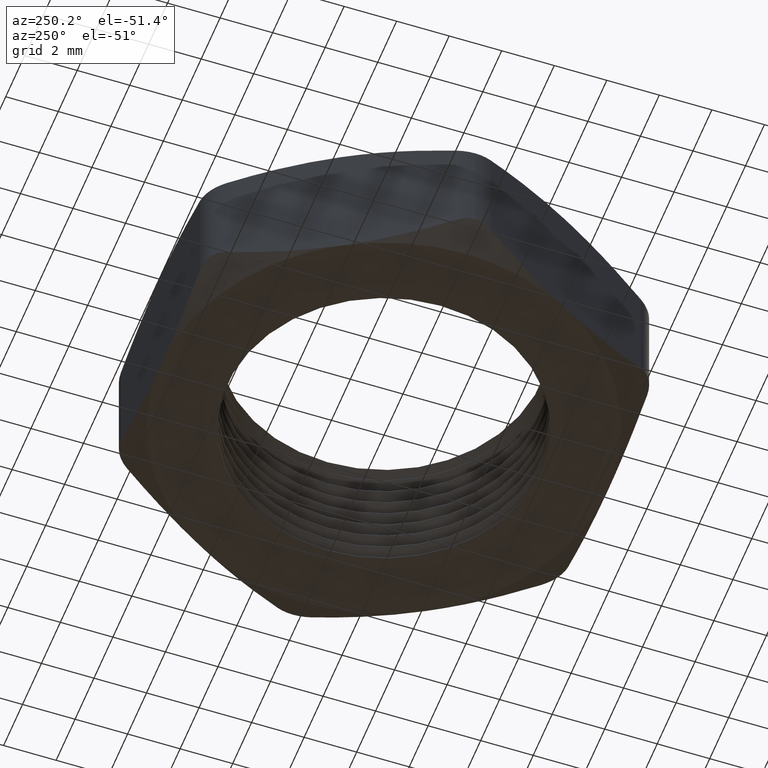
[diagram: clean part render]
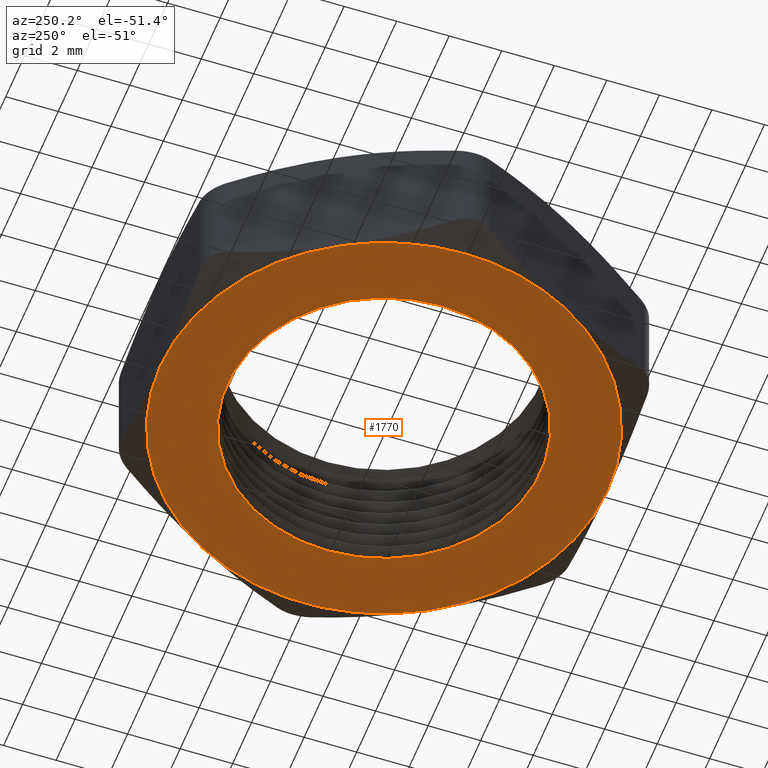
[diagram: same view with one face highlighted and labeled with its STEP entity id]
A machine part, auxiliary view. The second image highlights one B-rep face of the part: STEP entity #1770.
In plain terms, the highlighted planar face has unit normal (0, 0, 1).
Its self-contained STEP definition (entity closure, byte-faithful):
#123 = CARTESIAN_POINT ( 'NONE',  ( 0.2349999999999999900, 2.877919977996279800E-017, 0.0000000000000000000 ) ) ;
#171 = CARTESIAN_POINT ( 'NONE',  ( -0.2901185102677870700, -0.1674999999999999300, 0.0000000000000000000 ) ) ;
#203 = CARTESIAN_POINT ( 'NONE',  ( -0.2349999999999999900, 0.0000000000000000000, 0.0000000000000000000 ) ) ;
#204 = DIRECTION ( 'NONE',  ( 1.000000000000000000, 0.0000000000000000000, 0.0000000000000000000 ) ) ;
#205 = DIRECTION ( 'NONE',  ( 0.0000000000000000000, 0.0000000000000000000, 1.000000000000000000 ) ) ;
#206 = CARTESIAN_POINT ( 'NONE',  ( 0.0000000000000000000, 0.0000000000000000000, 0.0000000000000000000 ) ) ;
#207 = AXIS2_PLACEMENT_3D ( 'NONE', #206, #205, #204 ) ;
#208 = CIRCLE ( 'NONE', #207, 0.2349999999999999900 ) ;
#604 = CARTESIAN_POINT ( 'NONE',  ( 0.0000000000000000000, 0.0000000000000000000, 0.0000000000000000000 ) ) ;
#712 = CARTESIAN_POINT ( 'NONE',  ( -0.3350000000000000200, 0.0000000000000000000, 0.0000000000000000000 ) ) ;
#713 = CARTESIAN_POINT ( 'NONE',  ( -0.2901185102677870700, 0.1675000000000000900, 0.0000000000000000000 ) ) ;
#714 = DIRECTION ( 'NONE',  ( 1.000000000000000000, 0.0000000000000000000, 0.0000000000000000000 ) ) ;
#715 = DIRECTION ( 'NONE',  ( 0.0000000000000000000, 0.0000000000000000000, 1.000000000000000000 ) ) ;
#716 = AXIS2_PLACEMENT_3D ( 'NONE', #604, #715, #714 ) ;
#717 = CIRCLE ( 'NONE', #716, 0.3350000000000000200 ) ;
#740 = DIRECTION ( 'NONE',  ( 1.000000000000000000, 0.0000000000000000000, 0.0000000000000000000 ) ) ;
#741 = DIRECTION ( 'NONE',  ( 0.0000000000000000000, 0.0000000000000000000, 1.000000000000000000 ) ) ;
#773 = CIRCLE ( 'NONE', #793, 0.3350000000000000200 ) ;
#792 = CARTESIAN_POINT ( 'NONE',  ( 0.0000000000000000000, 0.0000000000000000000, 0.0000000000000000000 ) ) ;
#793 = AXIS2_PLACEMENT_3D ( 'NONE', #792, #741, #740 ) ;
#857 = CARTESIAN_POINT ( 'NONE',  ( 0.0000000000000000000, 0.0000000000000000000, 0.0000000000000000000 ) ) ;
#890 = DIRECTION ( 'NONE',  ( 1.000000000000000000, 0.0000000000000000000, 0.0000000000000000000 ) ) ;
#891 = DIRECTION ( 'NONE',  ( 0.0000000000000000000, 0.0000000000000000000, 1.000000000000000000 ) ) ;
#892 = AXIS2_PLACEMENT_3D ( 'NONE', #909, #891, #890 ) ;
#893 = CIRCLE ( 'NONE', #892, 0.3350000000000000200 ) ;
#894 = DIRECTION ( 'NONE',  ( 1.000000000000000000, 0.0000000000000000000, 0.0000000000000000000 ) ) ;
#895 = DIRECTION ( 'NONE',  ( 0.0000000000000000000, 0.0000000000000000000, 1.000000000000000000 ) ) ;
#896 = CARTESIAN_POINT ( 'NONE',  ( 0.0000000000000000000, 0.0000000000000000000, 0.0000000000000000000 ) ) ;
#907 = AXIS2_PLACEMENT_3D ( 'NONE', #896, #895, #894 ) ;
#908 = CIRCLE ( 'NONE', #907, 0.3350000000000000200 ) ;
#909 = CARTESIAN_POINT ( 'NONE',  ( 0.0000000000000000000, 0.0000000000000000000, 0.0000000000000000000 ) ) ;
#954 = DIRECTION ( 'NONE',  ( 1.000000000000000000, 0.0000000000000000000, 0.0000000000000000000 ) ) ;
#955 = DIRECTION ( 'NONE',  ( 0.0000000000000000000, 0.0000000000000000000, 1.000000000000000000 ) ) ;
#956 = CARTESIAN_POINT ( 'NONE',  ( -0.5802370205355739100, -0.3349999999999999600, 0.0000000000000000000 ) ) ;
#957 = AXIS2_PLACEMENT_3D ( 'NONE', #956, #955, #954 ) ;
#958 = PLANE ( 'NONE',  #957 ) ;
#959 = FACE_OUTER_BOUND ( 'NONE', #1809, .T. ) ;
#960 = DIRECTION ( 'NONE',  ( 1.000000000000000000, 0.0000000000000000000, 0.0000000000000000000 ) ) ;
#961 = DIRECTION ( 'NONE',  ( 0.0000000000000000000, 0.0000000000000000000, 1.000000000000000000 ) ) ;
#972 = AXIS2_PLACEMENT_3D ( 'NONE', #857, #961, #960 ) ;
#973 = CIRCLE ( 'NONE', #972, 0.3350000000000000200 ) ;
#974 = FACE_BOUND ( 'NONE', #1769, .T. ) ;
#989 = DIRECTION ( 'NONE',  ( -1.000000000000000000, 0.0000000000000000000, 0.0000000000000000000 ) ) ;
#990 = DIRECTION ( 'NONE',  ( 0.0000000000000000000, 0.0000000000000000000, -1.000000000000000000 ) ) ;
#991 = CARTESIAN_POINT ( 'NONE',  ( 0.0000000000000000000, 0.0000000000000000000, 0.0000000000000000000 ) ) ;
#992 = AXIS2_PLACEMENT_3D ( 'NONE', #991, #990, #989 ) ;
#993 = CIRCLE ( 'NONE', #992, 0.3350000000000001300 ) ;
#994 = DIRECTION ( 'NONE',  ( 1.000000000000000000, 0.0000000000000000000, 0.0000000000000000000 ) ) ;
#995 = DIRECTION ( 'NONE',  ( 0.0000000000000000000, 0.0000000000000000000, 1.000000000000000000 ) ) ;
#996 = CARTESIAN_POINT ( 'NONE',  ( 0.0000000000000000000, 0.0000000000000000000, 0.0000000000000000000 ) ) ;
#997 = AXIS2_PLACEMENT_3D ( 'NONE', #996, #995, #994 ) ;
#1000 = CIRCLE ( 'NONE', #997, 0.3350000000000000200 ) ;
#1110 = CARTESIAN_POINT ( 'NONE',  ( 0.2901185102677870700, 0.1674999999999999800, 0.0000000000000000000 ) ) ;
#1124 = CARTESIAN_POINT ( 'NONE',  ( 0.0000000000000000000, -0.3350000000000001300, 0.0000000000000000000 ) ) ;
#1176 = CARTESIAN_POINT ( 'NONE',  ( 0.0000000000000000000, 0.3350000000000001300, 0.0000000000000000000 ) ) ;
#1212 = CARTESIAN_POINT ( 'NONE',  ( 0.2901185102677870700, -0.1675000000000000700, 0.0000000000000000000 ) ) ;
#1327 = CARTESIAN_POINT ( 'NONE',  ( 0.0000000000000000000, 0.0000000000000000000, 0.0000000000000000000 ) ) ;
#1328 = AXIS2_PLACEMENT_3D ( 'NONE', #1327, #1337, #1336 ) ;
#1335 = CIRCLE ( 'NONE', #1328, 0.2349999999999999900 ) ;
#1336 = DIRECTION ( 'NONE',  ( 1.000000000000000000, 0.0000000000000000000, 0.0000000000000000000 ) ) ;
#1337 = DIRECTION ( 'NONE',  ( 0.0000000000000000000, 0.0000000000000000000, 1.000000000000000000 ) ) ;
#1493 = EDGE_CURVE ( 'NONE', #1494, #1495, #717, .T. ) ;
#1494 = VERTEX_POINT ( 'NONE', #713 ) ;
#1495 = VERTEX_POINT ( 'NONE', #712 ) ;
#1563 = VERTEX_POINT ( 'NONE', #123 ) ;
#1619 = EDGE_CURVE ( 'NONE', #1620, #1563, #208, .T. ) ;
#1620 = VERTEX_POINT ( 'NONE', #203 ) ;
#1628 = VERTEX_POINT ( 'NONE', #171 ) ;
#1730 = EDGE_CURVE ( 'NONE', #1916, #1947, #1000, .T. ) ;
#1731 = ORIENTED_EDGE ( 'NONE', *, *, #1798, .F. ) ;
#1733 = ORIENTED_EDGE ( 'NONE', *, *, #1734, .T. ) ;
#1734 = EDGE_CURVE ( 'NONE', #1494, #1927, #993, .T. ) ;
#1745 = ORIENTED_EDGE ( 'NONE', *, *, #1972, .T. ) ;
#1767 = EDGE_CURVE ( 'NONE', #1947, #1927, #973, .T. ) ;
#1768 = ORIENTED_EDGE ( 'NONE', *, *, #1730, .F. ) ;
#1769 = EDGE_LOOP ( 'NONE', ( #1880, #1745 ) ) ;
#1770 = ADVANCED_FACE ( 'NONE', ( #974, #959 ), #958, .F. ) ;
#1790 = ORIENTED_EDGE ( 'NONE', *, *, #1799, .F. ) ;
#1798 = EDGE_CURVE ( 'NONE', #1965, #1916, #908, .T. ) ;
#1799 = EDGE_CURVE ( 'NONE', #1495, #1628, #893, .T. ) ;
#1800 = ORIENTED_EDGE ( 'NONE', *, *, #1493, .F. ) ;
#1809 = EDGE_LOOP ( 'NONE', ( #1810, #1768, #1731, #1866, #1790, #1800, #1733 ) ) ;
#1810 = ORIENTED_EDGE ( 'NONE', *, *, #1767, .F. ) ;
#1866 = ORIENTED_EDGE ( 'NONE', *, *, #1867, .F. ) ;
#1867 = EDGE_CURVE ( 'NONE', #1628, #1965, #773, .T. ) ;
#1880 = ORIENTED_EDGE ( 'NONE', *, *, #1619, .T. ) ;
#1916 = VERTEX_POINT ( 'NONE', #1212 ) ;
#1927 = VERTEX_POINT ( 'NONE', #1176 ) ;
#1947 = VERTEX_POINT ( 'NONE', #1110 ) ;
#1965 = VERTEX_POINT ( 'NONE', #1124 ) ;
#1972 = EDGE_CURVE ( 'NONE', #1563, #1620, #1335, .T. ) ;